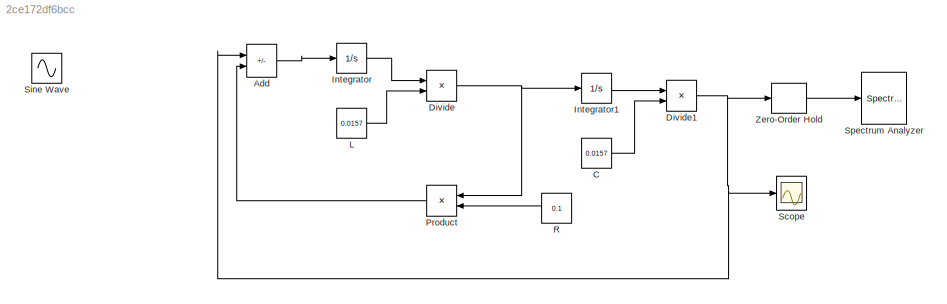
MODEL slx_2ce172df6bcc
KIND model
CONFIG AbsTol = auto
CONFIG EnableMultiTasking = off
CONFIG FixedStep = auto
CONFIG MaxStep = auto
CONFIG MinStep = auto
CONFIG RelTol = 1e-3
CONFIG SampleTimeConstraint = Unconstrained
CONFIG SolverName = VariableStepAuto
CONFIG StartTime = 0.0
CONFIG StopTime = 2
BLOCK [Sum] Add
  IconShape = rectangular
  Inputs = --
  Ports = [2, 1]
BLOCK [Constant] C
  Value = 0.0157
BLOCK [Product] Divide
  Inputs = */
  Ports = [2, 1]
BLOCK [Product] Divide1
  Inputs = */
  Ports = [2, 1]
BLOCK [Integrator] Integrator
  Ports = [1, 1]
BLOCK [Integrator] Integrator1
  Ports = [1, 1]
BLOCK [Constant] L
  Value = 0.0157
BLOCK [Product] Product
  Ports = [2, 1]
BLOCK [Constant] R
  Value = 0.1
BLOCK [Scope] Scope
  Floating = off
  NumInputPorts = 1
  Ports = [1]
  ScopeSpecificationString = Simulink.scopes.TimeScopeBlockCfg('CurrentConfiguration', extmgr.ConfigurationSet(extmgr.Configuration('Core','General UI',true),extmgr.Configuration('Core','Source UI',true),extmgr.Configuration('Sources','WiredSimulink',true),extmgr.Configuration('Visuals','Time Domain',true,'SerializedDisplays',{struct('MinYLimReal','-1.41436','MaxYLimReal','1.23443','YLabelReal','','MinYLimMag','0.00000','MaxY...<+1412ch>
BLOCK [Sin] Sine Wave
  Amplitude = 4/3.14159
  Frequency = 32*2*3.14
  Ports = [0, 1]
  SampleTime = 0
BLOCK [SpectrumAnalyzer] Spectrum Analyzer
  Ports = [1]
  ScopeSpecificationString = spbscopes.SpectrumAnalyzerBlockCfg('CurrentConfiguration', extmgr.ConfigurationSet(extmgr.Configuration('Core','General UI',true),extmgr.Configuration('Core','Source UI',true),extmgr.Configuration('Sources','WiredSimulink',true),extmgr.Configuration('Sources','Simulink',false),extmgr.Configuration('Sources','File',false),extmgr.Configuration('Sources','Workspace',false),extmgr.Configuration('Sourc...<+2456ch>
BLOCK [ZeroOrderHold] Zero-Order Hold
  SampleTime = 1/1024
LINE Add:1 -> Integrator:1
LINE C:1 -> Divide1:2
NET Divide1:1 -> Add:1, Scope:1, Zero-Order Hold:1
NET Divide:1 -> Integrator1:1, Product:1
LINE Integrator1:1 -> Divide1:1
LINE Integrator:1 -> Divide:1
LINE L:1 -> Divide:2
LINE Product:1 -> Add:2
LINE R:1 -> Product:2
LINE Zero-Order Hold:1 -> Spectrum Analyzer:1
note: NET lines group one-source signal fan-out (src -> all destinations, sorted); 1:1 wires keep LINE
